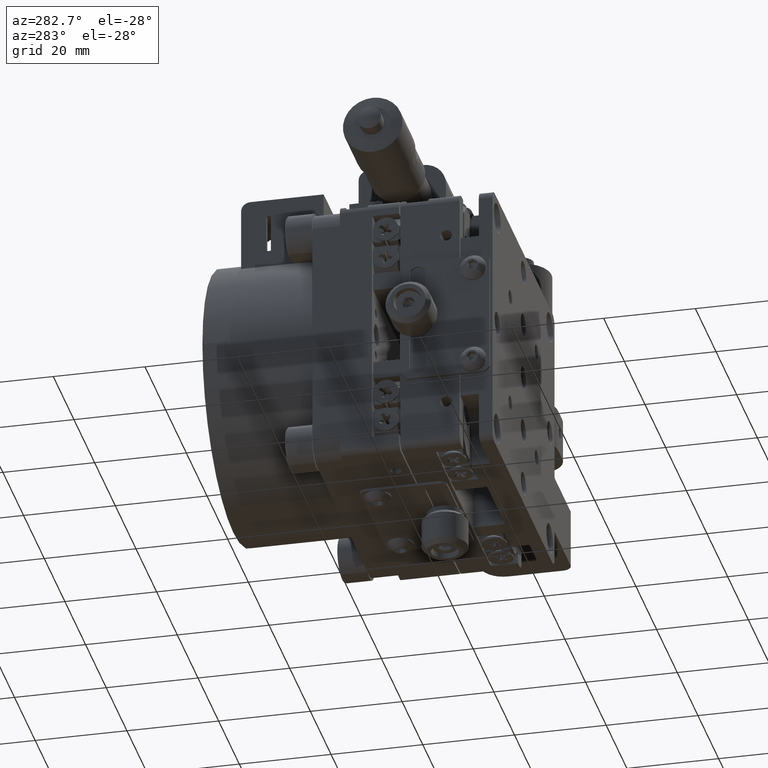
[diagram: clean part render]
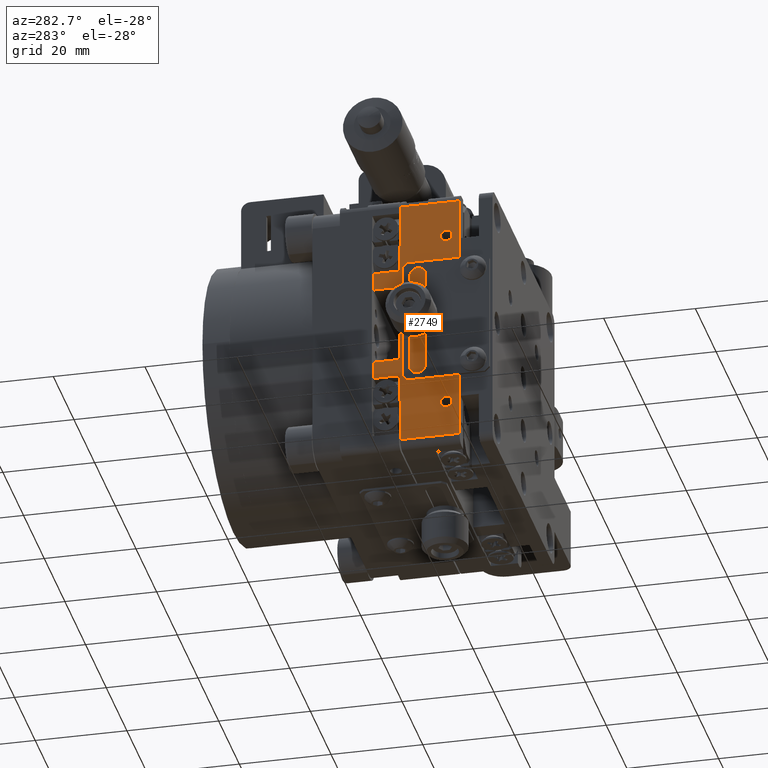
[diagram: same view with one face highlighted and labeled with its STEP entity id]
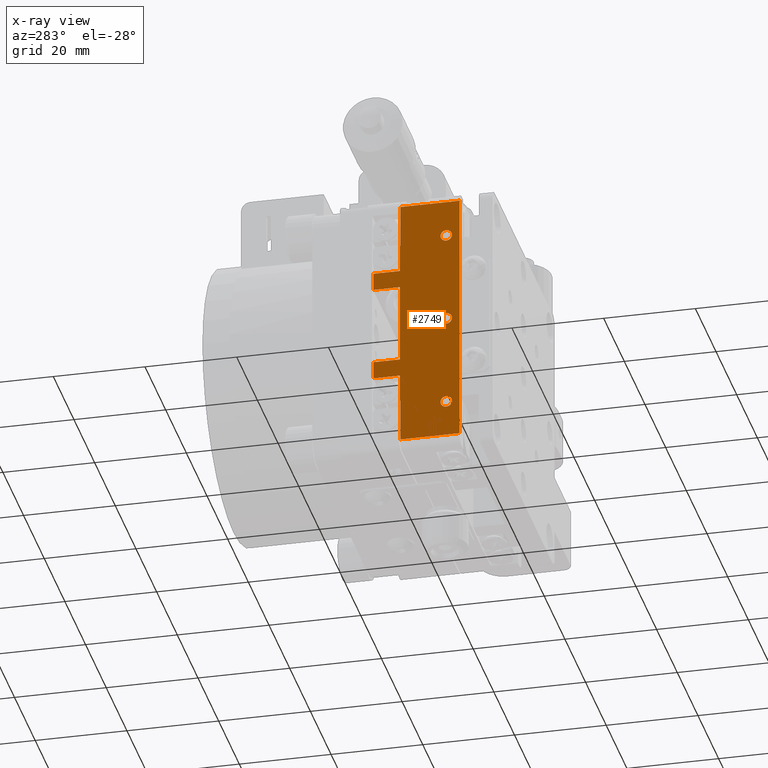
[diagram: x-ray of the same camera — body ghosted, the highlighted face saturated]
A machine part, auxiliary view. The second image highlights one B-rep face of the part: STEP entity #2749.
The next image is the same camera in x-ray: the body ghosted, the highlighted face saturated — about 0% of this face is hidden behind the body in this view.
In plain terms, the highlighted planar face has unit normal (-1, -0, 0).
Its self-contained STEP definition (entity closure, byte-faithful):
#145 = EDGE_CURVE ( 'NONE', #53721, #46981, #33137, .T. ) ;
#202 = DIRECTION ( 'NONE',  ( -0.000000000000000000, -0.000000000000000000, 1.000000000000000000 ) ) ;
#405 = VECTOR ( 'NONE', #54805, 1000.000000000000000 ) ;
#793 = VECTOR ( 'NONE', #31595, 1000.000000000000000 ) ;
#1019 = VERTEX_POINT ( 'NONE', #28800 ) ;
#1221 = CARTESIAN_POINT ( 'NONE',  ( -30.00000000000000000, 20.19999999999999929, -18.69999999999999574 ) ) ;
#1363 = VECTOR ( 'NONE', #24712, 1000.000000000000000 ) ;
#1772 = ORIENTED_EDGE ( 'NONE', *, *, #30170, .F. ) ;
#1802 = ORIENTED_EDGE ( 'NONE', *, *, #145, .F. ) ;
#1912 = EDGE_CURVE ( 'NONE', #50794, #23480, #56780, .T. ) ;
#2004 = FACE_BOUND ( 'NONE', #37950, .T. ) ;
#2670 = VERTEX_POINT ( 'NONE', #19357 ) ;
#2749 = ADVANCED_FACE ( 'NONE', ( #11843, #10988, #7486, #2004, #25123 ), #20783, .T. ) ;
#2996 = VECTOR ( 'NONE', #32272, 1000.000000000000000 ) ;
#3605 = AXIS2_PLACEMENT_3D ( 'NONE', #38660, #34589, #56318 ) ;
#4135 = LINE ( 'NONE', #44066, #14238 ) ;
#4259 = VERTEX_POINT ( 'NONE', #49457 ) ;
#4404 = LINE ( 'NONE', #21742, #21897 ) ;
#4578 = CARTESIAN_POINT ( 'NONE',  ( -30.00000000000000000, 7.200000000000052580, 27.99999999999995381 ) ) ;
#5812 = ORIENTED_EDGE ( 'NONE', *, *, #19354, .F. ) ;
#6285 = VECTOR ( 'NONE', #6780, 1000.000000000000000 ) ;
#6499 = CARTESIAN_POINT ( 'NONE',  ( -30.00000000000000000, 16.40000000000000568, 1.734723475976807094E-15 ) ) ;
#6740 = DIRECTION ( 'NONE',  ( 0.000000000000000000, 0.000000000000000000, 1.000000000000000000 ) ) ;
#6780 = DIRECTION ( 'NONE',  ( 0.000000000000000000, 1.000000000000000000, 0.000000000000000000 ) ) ;
#7486 = FACE_BOUND ( 'NONE', #30416, .T. ) ;
#7723 = CARTESIAN_POINT ( 'NONE',  ( -30.00000000000000000, 26.00000000000000000, 8.700000000000001066 ) ) ;
#8173 = DIRECTION ( 'NONE',  ( -0.000000000000000000, -0.000000000000000000, 1.000000000000000000 ) ) ;
#8197 = ORIENTED_EDGE ( 'NONE', *, *, #11209, .F. ) ;
#8784 = CARTESIAN_POINT ( 'NONE',  ( -30.00000000000000000, 7.200000000000158273, -27.99999999999999645 ) ) ;
#9509 = CARTESIAN_POINT ( 'NONE',  ( -30.00000000000000000, 20.19999999999999574, 8.700000000000001066 ) ) ;
#9767 = CIRCLE ( 'NONE', #54114, 1.249999999999987121 ) ;
#10218 = ORIENTED_EDGE ( 'NONE', *, *, #15856, .F. ) ;
#10292 = AXIS2_PLACEMENT_3D ( 'NONE', #44920, #22894, #46061 ) ;
#10786 = CARTESIAN_POINT ( 'NONE',  ( -30.00000000000000000, 26.00000000000000000, -12.59999999999999787 ) ) ;
#10988 = FACE_BOUND ( 'NONE', #31588, .T. ) ;
#11046 = VERTEX_POINT ( 'NONE', #16568 ) ;
#11209 = EDGE_CURVE ( 'NONE', #33776, #4259, #35209, .T. ) ;
#11445 = DIRECTION ( 'NONE',  ( -1.000000000000000000, -0.000000000000000000, 0.000000000000000000 ) ) ;
#11727 = LINE ( 'NONE', #43260, #30231 ) ;
#11807 = EDGE_LOOP ( 'NONE', ( #28404, #41762 ) ) ;
#11843 = FACE_BOUND ( 'NONE', #11807, .T. ) ;
#12374 = VECTOR ( 'NONE', #50254, 1000.000000000000000 ) ;
#12674 = CARTESIAN_POINT ( 'NONE',  ( -30.00000000000000000, 20.19999999999999929, 18.70000000000000284 ) ) ;
#12837 = LINE ( 'NONE', #34239, #1363 ) ;
#14088 = EDGE_CURVE ( 'NONE', #51852, #2670, #14886, .T. ) ;
#14238 = VECTOR ( 'NONE', #56796, 1000.000000000000000 ) ;
#14355 = EDGE_CURVE ( 'NONE', #53721, #52117, #4135, .T. ) ;
#14523 = VECTOR ( 'NONE', #43071, 1000.000000000000000 ) ;
#14573 = CARTESIAN_POINT ( 'NONE',  ( -30.00000000000000000, 10.10000000000000142, 0.000000000000000000 ) ) ;
#14649 = CARTESIAN_POINT ( 'NONE',  ( -30.00000000000000000, 7.200000000000162714, -30.00000000000000000 ) ) ;
#14823 = CARTESIAN_POINT ( 'NONE',  ( -30.00000000000000000, 16.40000000000000568, 1.249999999999990674 ) ) ;
#14886 = LINE ( 'NONE', #53922, #41919 ) ;
#14905 = DIRECTION ( 'NONE',  ( 0.000000000000000000, 0.000000000000000000, 1.000000000000000000 ) ) ;
#15084 = EDGE_CURVE ( 'NONE', #54124, #52117, #12837, .T. ) ;
#15263 = VECTOR ( 'NONE', #202, 1000.000000000000000 ) ;
#15313 = DIRECTION ( 'NONE',  ( 0.000000000000000000, 0.000000000000000000, 1.000000000000000000 ) ) ;
#15856 = EDGE_CURVE ( 'NONE', #1019, #30508, #27930, .T. ) ;
#15922 = AXIS2_PLACEMENT_3D ( 'NONE', #15976, #17117, #43743 ) ;
#15976 = CARTESIAN_POINT ( 'NONE',  ( -30.00000000000000000, 10.10000000000000142, -19.99999999999999645 ) ) ;
#16388 = EDGE_CURVE ( 'NONE', #23480, #50794, #31812, .T. ) ;
#16433 = CARTESIAN_POINT ( 'NONE',  ( -30.00000000000000000, 20.10000000000000142, -30.00000000000000000 ) ) ;
#16568 = CARTESIAN_POINT ( 'NONE',  ( -30.00000000000000000, 16.40000000000000568, -1.249999999999987121 ) ) ;
#17117 = DIRECTION ( 'NONE',  ( -1.000000000000000000, -0.000000000000000000, 0.000000000000000000 ) ) ;
#18270 = CARTESIAN_POINT ( 'NONE',  ( -30.00000000000000000, 20.10000000000000142, -27.99999999999999645 ) ) ;
#19354 = EDGE_CURVE ( 'NONE', #28766, #52624, #31887, .T. ) ;
#19357 = CARTESIAN_POINT ( 'NONE',  ( -30.00000000000000000, 20.19999999999999929, 12.60000000000000142 ) ) ;
#19456 = ORIENTED_EDGE ( 'NONE', *, *, #31433, .F. ) ;
#19474 = VERTEX_POINT ( 'NONE', #14823 ) ;
#19497 = CARTESIAN_POINT ( 'NONE',  ( -30.00000000000000000, 20.19999999999999574, -8.699999999999997513 ) ) ;
#19624 = CARTESIAN_POINT ( 'NONE',  ( -30.00000000000000000, 14.10000000000002984, -18.69999999999999574 ) ) ;
#19993 = EDGE_CURVE ( 'NONE', #11046, #19474, #57214, .T. ) ;
#20105 = EDGE_CURVE ( 'NONE', #36228, #46981, #34873, .T. ) ;
#20389 = EDGE_CURVE ( 'NONE', #19474, #11046, #48874, .T. ) ;
#20783 = PLANE ( 'NONE',  #39395 ) ;
#21229 = DIRECTION ( 'NONE',  ( 0.000000000000000000, -1.000000000000000000, 0.000000000000000000 ) ) ;
#21742 = CARTESIAN_POINT ( 'NONE',  ( -30.00000000000000000, 26.00000000000000000, 12.60000000000000142 ) ) ;
#21897 = VECTOR ( 'NONE', #8173, 1000.000000000000000 ) ;
#22004 = ORIENTED_EDGE ( 'NONE', *, *, #50179, .F. ) ;
#22601 = VERTEX_POINT ( 'NONE', #33759 ) ;
#22894 = DIRECTION ( 'NONE',  ( -1.000000000000000000, -0.000000000000000000, 0.000000000000000000 ) ) ;
#23024 = DIRECTION ( 'NONE',  ( -1.000000000000000000, -0.000000000000000000, 0.000000000000000000 ) ) ;
#23225 = DIRECTION ( 'NONE',  ( -1.000000000000000000, -0.000000000000000000, 0.000000000000000000 ) ) ;
#23480 = VERTEX_POINT ( 'NONE', #24106 ) ;
#23732 = VECTOR ( 'NONE', #30855, 1000.000000000000000 ) ;
#24106 = CARTESIAN_POINT ( 'NONE',  ( -30.00000000000000000, 10.10000000000000142, -1.249999999999988898 ) ) ;
#24265 = DIRECTION ( 'NONE',  ( 0.000000000000000000, 0.000000000000000000, 1.000000000000000000 ) ) ;
#24627 = EDGE_CURVE ( 'NONE', #27313, #22601, #27957, .T. ) ;
#24712 = DIRECTION ( 'NONE',  ( -0.000000000000000000, -0.000000000000000000, 1.000000000000000000 ) ) ;
#25123 = FACE_OUTER_BOUND ( 'NONE', #43772, .T. ) ;
#25181 = ORIENTED_EDGE ( 'NONE', *, *, #20389, .F. ) ;
#25372 = CARTESIAN_POINT ( 'NONE',  ( -30.00000000000000000, 26.00000000000000000, 12.60000000000000142 ) ) ;
#25436 = CARTESIAN_POINT ( 'NONE',  ( -30.00000000000000000, 20.10000000000000142, 28.00000000000000355 ) ) ;
#25801 = AXIS2_PLACEMENT_3D ( 'NONE', #6499, #41801, #14905 ) ;
#26092 = ORIENTED_EDGE ( 'NONE', *, *, #1912, .F. ) ;
#26475 = VERTEX_POINT ( 'NONE', #29369 ) ;
#27313 = VERTEX_POINT ( 'NONE', #57004 ) ;
#27702 = EDGE_CURVE ( 'NONE', #2670, #45201, #52289, .T. ) ;
#27930 = LINE ( 'NONE', #19497, #405 ) ;
#27957 = CIRCLE ( 'NONE', #15922, 1.249999999999987121 ) ;
#28017 = ORIENTED_EDGE ( 'NONE', *, *, #20105, .T. ) ;
#28404 = ORIENTED_EDGE ( 'NONE', *, *, #56000, .F. ) ;
#28639 = CARTESIAN_POINT ( 'NONE',  ( -30.00000000000000000, 10.10000000000000142, -19.99999999999999645 ) ) ;
#28766 = VERTEX_POINT ( 'NONE', #36836 ) ;
#28800 = CARTESIAN_POINT ( 'NONE',  ( -30.00000000000000000, 20.19999999999999574, -8.699999999999997513 ) ) ;
#29369 = CARTESIAN_POINT ( 'NONE',  ( -30.00000000000000000, 20.19999999999999929, -12.59999999999999787 ) ) ;
#30170 = EDGE_CURVE ( 'NONE', #4259, #33776, #56902, .T. ) ;
#30231 = VECTOR ( 'NONE', #21229, 1000.000000000000000 ) ;
#30416 = EDGE_LOOP ( 'NONE', ( #26092, #47970 ) ) ;
#30508 = VERTEX_POINT ( 'NONE', #9509 ) ;
#30855 = DIRECTION ( 'NONE',  ( 0.000000000000000000, 0.000000000000000000, 1.000000000000000000 ) ) ;
#31139 = EDGE_CURVE ( 'NONE', #26475, #47194, #53054, .T. ) ;
#31433 = EDGE_CURVE ( 'NONE', #47194, #39625, #50435, .T. ) ;
#31588 = EDGE_LOOP ( 'NONE', ( #25181, #37327 ) ) ;
#31595 = DIRECTION ( 'NONE',  ( 0.000000000000000000, 1.000000000000000000, 0.000000000000000000 ) ) ;
#31645 = EDGE_CURVE ( 'NONE', #33001, #51852, #4404, .T. ) ;
#31812 = CIRCLE ( 'NONE', #47532, 1.249999999999988898 ) ;
#31857 = EDGE_CURVE ( 'NONE', #36228, #28766, #55491, .T. ) ;
#31887 = LINE ( 'NONE', #1221, #793 ) ;
#32272 = DIRECTION ( 'NONE',  ( 0.000000000000000000, 1.894780628693600864E-15, -1.000000000000000000 ) ) ;
#32594 = LINE ( 'NONE', #45951, #12374 ) ;
#33001 = VERTEX_POINT ( 'NONE', #7723 ) ;
#33137 = LINE ( 'NONE', #14649, #2996 ) ;
#33705 = DIRECTION ( 'NONE',  ( 0.000000000000000000, 0.000000000000000000, 1.000000000000000000 ) ) ;
#33759 = CARTESIAN_POINT ( 'NONE',  ( -30.00000000000000000, 10.10000000000000142, -18.75000000000001066 ) ) ;
#33776 = VERTEX_POINT ( 'NONE', #54607 ) ;
#34239 = CARTESIAN_POINT ( 'NONE',  ( -30.00000000000000000, 20.10000000000000142, 30.00000000000000355 ) ) ;
#34519 = CARTESIAN_POINT ( 'NONE',  ( -30.00000000000000000, 20.19999999999999929, 18.70000000000000284 ) ) ;
#34552 = DIRECTION ( 'NONE',  ( 0.000000000000000000, 1.000000000000000000, 0.000000000000000000 ) ) ;
#34589 = DIRECTION ( 'NONE',  ( -1.000000000000000000, -0.000000000000000000, 0.000000000000000000 ) ) ;
#34842 = CARTESIAN_POINT ( 'NONE',  ( -30.00000000000000000, 26.00000000000000000, -12.59999999999999787 ) ) ;
#34873 = LINE ( 'NONE', #57172, #38705 ) ;
#35209 = CIRCLE ( 'NONE', #10292, 1.249999999999987121 ) ;
#35448 = CARTESIAN_POINT ( 'NONE',  ( -30.00000000000000000, 20.10000000000000142, 18.70000000000000284 ) ) ;
#36228 = VERTEX_POINT ( 'NONE', #18270 ) ;
#36836 = CARTESIAN_POINT ( 'NONE',  ( -30.00000000000000000, 20.09999999999999787, -18.69999999999999574 ) ) ;
#37302 = DIRECTION ( 'NONE',  ( -1.000000000000000000, -0.000000000000000000, 0.000000000000000000 ) ) ;
#37327 = ORIENTED_EDGE ( 'NONE', *, *, #19993, .F. ) ;
#37432 = CARTESIAN_POINT ( 'NONE',  ( -30.00000000000000000, 26.00000000000000000, -12.59999999999999787 ) ) ;
#37499 = CARTESIAN_POINT ( 'NONE',  ( -30.00000000000000000, 10.10000000000000142, 0.000000000000000000 ) ) ;
#37761 = LINE ( 'NONE', #46433, #6285 ) ;
#37950 = EDGE_LOOP ( 'NONE', ( #8197, #1772 ) ) ;
#38272 = ORIENTED_EDGE ( 'NONE', *, *, #14355, .T. ) ;
#38660 = CARTESIAN_POINT ( 'NONE',  ( -30.00000000000000000, 16.40000000000000568, 1.734723475976807094E-15 ) ) ;
#38705 = VECTOR ( 'NONE', #44160, 1000.000000000000000 ) ;
#38725 = ORIENTED_EDGE ( 'NONE', *, *, #31139, .F. ) ;
#38965 = CARTESIAN_POINT ( 'NONE',  ( -30.00000000000000000, 20.19999999999999929, -18.69999999999999574 ) ) ;
#39253 = LINE ( 'NONE', #38965, #23732 ) ;
#39395 = AXIS2_PLACEMENT_3D ( 'NONE', #19624, #37302, #15313 ) ;
#39616 = EDGE_CURVE ( 'NONE', #52624, #26475, #39253, .T. ) ;
#39625 = VERTEX_POINT ( 'NONE', #48531 ) ;
#39977 = ORIENTED_EDGE ( 'NONE', *, *, #31857, .F. ) ;
#40169 = CARTESIAN_POINT ( 'NONE',  ( -30.00000000000000000, 10.10000000000000142, 1.249999999999988898 ) ) ;
#40693 = DIRECTION ( 'NONE',  ( 0.000000000000000000, 0.000000000000000000, 1.000000000000000000 ) ) ;
#41762 = ORIENTED_EDGE ( 'NONE', *, *, #24627, .F. ) ;
#41801 = DIRECTION ( 'NONE',  ( -1.000000000000000000, -0.000000000000000000, 0.000000000000000000 ) ) ;
#41919 = VECTOR ( 'NONE', #46137, 1000.000000000000000 ) ;
#42034 = ORIENTED_EDGE ( 'NONE', *, *, #31645, .F. ) ;
#42661 = ORIENTED_EDGE ( 'NONE', *, *, #52834, .F. ) ;
#43071 = DIRECTION ( 'NONE',  ( 0.000000000000000000, -1.535153518563545591E-16, 1.000000000000000000 ) ) ;
#43162 = VECTOR ( 'NONE', #34552, 1000.000000000000000 ) ;
#43260 = CARTESIAN_POINT ( 'NONE',  ( -30.00000000000000000, 26.00000000000000000, -8.699999999999997513 ) ) ;
#43743 = DIRECTION ( 'NONE',  ( 0.000000000000000000, 0.000000000000000000, 1.000000000000000000 ) ) ;
#43772 = EDGE_LOOP ( 'NONE', ( #39977, #28017, #1802, #38272, #51973, #48873, #47698, #50181, #42034, #22004, #10218, #42661, #19456, #38725, #51214, #5812 ) ) ;
#44066 = CARTESIAN_POINT ( 'NONE',  ( -30.00000000000000000, 20.10000000000000853, 28.00000000000000355 ) ) ;
#44160 = DIRECTION ( 'NONE',  ( -0.000000000000000000, -1.000000000000000000, -0.000000000000000000 ) ) ;
#44920 = CARTESIAN_POINT ( 'NONE',  ( -30.00000000000000000, 10.10000000000000675, 20.00000000000000355 ) ) ;
#45201 = VERTEX_POINT ( 'NONE', #34519 ) ;
#45852 = AXIS2_PLACEMENT_3D ( 'NONE', #51051, #11445, #33705 ) ;
#45951 = CARTESIAN_POINT ( 'NONE',  ( -30.00000000000000000, 20.19999999999999929, 18.70000000000000284 ) ) ;
#46061 = DIRECTION ( 'NONE',  ( 0.000000000000000000, 0.000000000000000000, 1.000000000000000000 ) ) ;
#46137 = DIRECTION ( 'NONE',  ( 0.000000000000000000, -1.000000000000000000, 0.000000000000000000 ) ) ;
#46433 = CARTESIAN_POINT ( 'NONE',  ( -30.00000000000000000, 26.00000000000000000, 8.700000000000001066 ) ) ;
#46981 = VERTEX_POINT ( 'NONE', #8784 ) ;
#47194 = VERTEX_POINT ( 'NONE', #10786 ) ;
#47532 = AXIS2_PLACEMENT_3D ( 'NONE', #37499, #23024, #40693 ) ;
#47698 = ORIENTED_EDGE ( 'NONE', *, *, #27702, .F. ) ;
#47970 = ORIENTED_EDGE ( 'NONE', *, *, #16388, .F. ) ;
#48531 = CARTESIAN_POINT ( 'NONE',  ( -30.00000000000000000, 26.00000000000000000, -8.699999999999997513 ) ) ;
#48687 = VECTOR ( 'NONE', #6740, 1000.000000000000000 ) ;
#48873 = ORIENTED_EDGE ( 'NONE', *, *, #53897, .F. ) ;
#48874 = CIRCLE ( 'NONE', #25801, 1.249999999999988898 ) ;
#49376 = AXIS2_PLACEMENT_3D ( 'NONE', #14573, #23225, #54192 ) ;
#49457 = CARTESIAN_POINT ( 'NONE',  ( -30.00000000000000000, 10.10000000000000675, 18.75000000000001776 ) ) ;
#50179 = EDGE_CURVE ( 'NONE', #30508, #33001, #37761, .T. ) ;
#50181 = ORIENTED_EDGE ( 'NONE', *, *, #14088, .F. ) ;
#50254 = DIRECTION ( 'NONE',  ( 0.000000000000000000, -1.000000000000000000, 0.000000000000000000 ) ) ;
#50435 = LINE ( 'NONE', #37432, #48687 ) ;
#50794 = VERTEX_POINT ( 'NONE', #40169 ) ;
#51051 = CARTESIAN_POINT ( 'NONE',  ( -30.00000000000000000, 10.10000000000000675, 20.00000000000000355 ) ) ;
#51176 = DIRECTION ( 'NONE',  ( -1.000000000000000000, -0.000000000000000000, 0.000000000000000000 ) ) ;
#51214 = ORIENTED_EDGE ( 'NONE', *, *, #39616, .F. ) ;
#51852 = VERTEX_POINT ( 'NONE', #25372 ) ;
#51973 = ORIENTED_EDGE ( 'NONE', *, *, #15084, .F. ) ;
#52117 = VERTEX_POINT ( 'NONE', #25436 ) ;
#52289 = LINE ( 'NONE', #12674, #15263 ) ;
#52624 = VERTEX_POINT ( 'NONE', #57185 ) ;
#52834 = EDGE_CURVE ( 'NONE', #39625, #1019, #11727, .T. ) ;
#53054 = LINE ( 'NONE', #34842, #43162 ) ;
#53721 = VERTEX_POINT ( 'NONE', #4578 ) ;
#53897 = EDGE_CURVE ( 'NONE', #45201, #54124, #32594, .T. ) ;
#53922 = CARTESIAN_POINT ( 'NONE',  ( -30.00000000000000000, 26.00000000000000000, 12.60000000000000142 ) ) ;
#54114 = AXIS2_PLACEMENT_3D ( 'NONE', #28639, #51176, #24265 ) ;
#54124 = VERTEX_POINT ( 'NONE', #35448 ) ;
#54192 = DIRECTION ( 'NONE',  ( 0.000000000000000000, 0.000000000000000000, 1.000000000000000000 ) ) ;
#54607 = CARTESIAN_POINT ( 'NONE',  ( -30.00000000000000000, 10.10000000000000675, 21.24999999999999289 ) ) ;
#54805 = DIRECTION ( 'NONE',  ( 0.000000000000000000, -9.969675149291995716E-17, 1.000000000000000000 ) ) ;
#55491 = LINE ( 'NONE', #16433, #14523 ) ;
#56000 = EDGE_CURVE ( 'NONE', #22601, #27313, #9767, .T. ) ;
#56318 = DIRECTION ( 'NONE',  ( 0.000000000000000000, 0.000000000000000000, 1.000000000000000000 ) ) ;
#56780 = CIRCLE ( 'NONE', #49376, 1.249999999999988898 ) ;
#56796 = DIRECTION ( 'NONE',  ( -0.000000000000000000, 1.000000000000000000, 3.469446951953713980E-15 ) ) ;
#56902 = CIRCLE ( 'NONE', #45852, 1.249999999999987121 ) ;
#57004 = CARTESIAN_POINT ( 'NONE',  ( -30.00000000000000000, 10.10000000000000142, -21.24999999999998579 ) ) ;
#57172 = CARTESIAN_POINT ( 'NONE',  ( -30.00000000000000000, 7.200000000000162714, -27.99999999999999645 ) ) ;
#57185 = CARTESIAN_POINT ( 'NONE',  ( -30.00000000000000000, 20.19999999999999929, -18.69999999999999574 ) ) ;
#57214 = CIRCLE ( 'NONE', #3605, 1.249999999999988898 ) ;